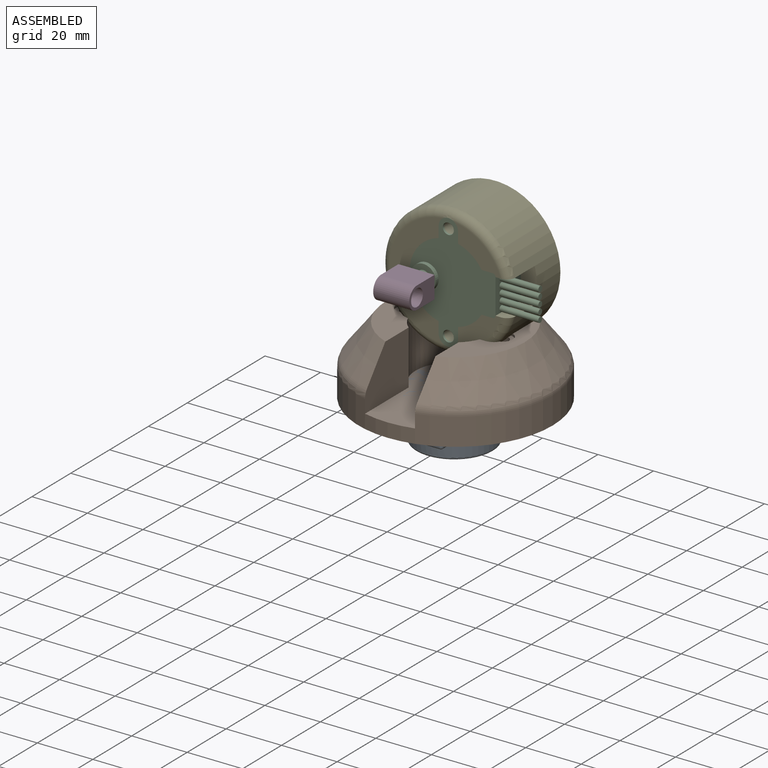
[diagram: assembled view]
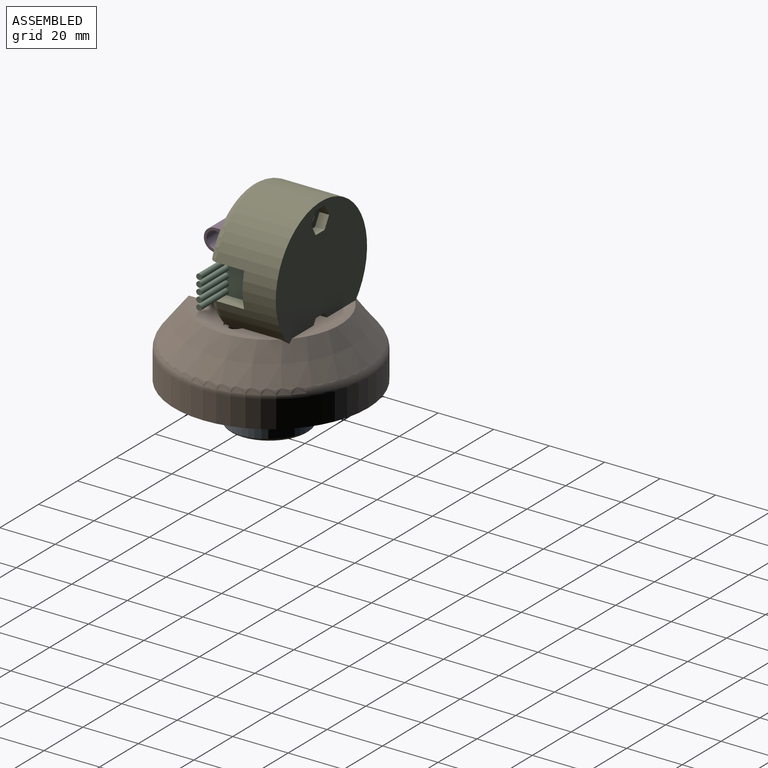
[diagram: assembled view, second angle]
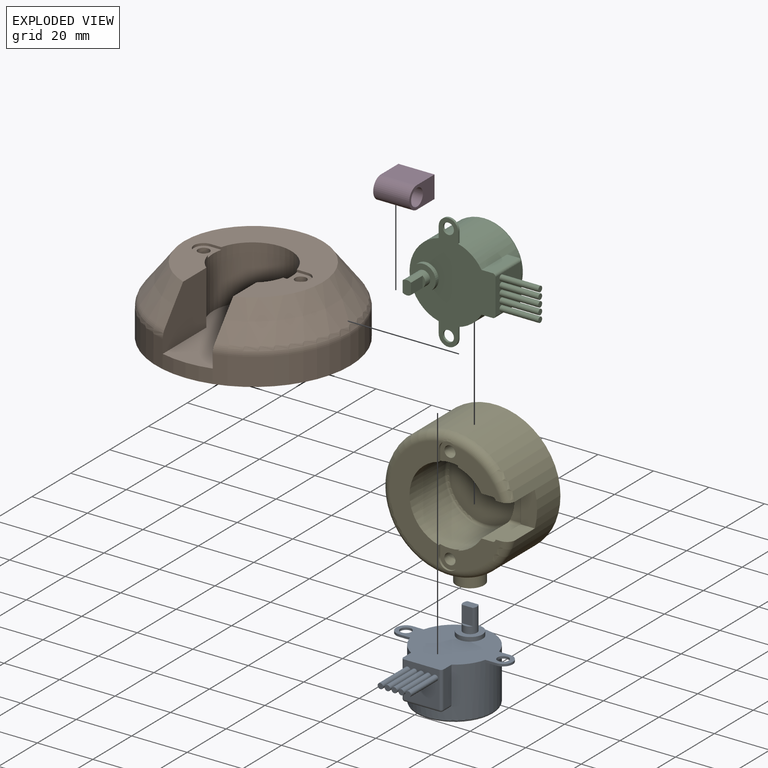
[diagram: exploded view]
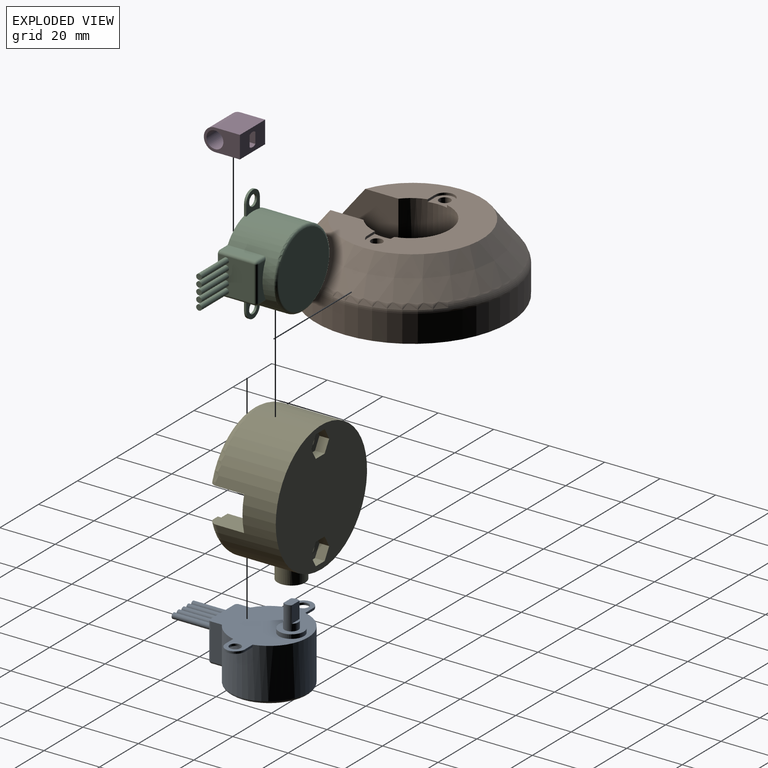
[diagram: exploded view, second angle]
ASSEMBLY  parts=5 mates=3
PART A: 43 faces, bbox 42x46.2x29 mm
  f0: sphere r=1mm, area 1.6mm2, adj f1,f5,f6
  f1: cylinder r=1mm len=13mm, axis (0,0,1), area 20.4mm2, adj f0,f7,f8,f9
  f2: sphere r=1mm, area 1.6mm2, adj f3,f4,f5
  f3: cylinder r=1mm len=13mm, axis (0,0,1), area 20.4mm2, adj f2,f7,f8,f28
  f4: cylinder r=1mm len=4.05mm, axis (0,-1,0), area 5.9mm2, adj f2,f11,f28,f29
  f5: cylinder r=1mm len=12.6mm, axis (-1,0,0), area 19.8mm2, adj f0,f2,f7,f29
  f6: cylinder r=1mm len=4.05mm, axis (0,1,0), area 5.9mm2, adj f0,f9,f11,f29
  f7: plane 13x12.6mm, normal (0,-1,0), area 148.1mm2, adj f1,f3,f5,f8,f18,f20,f22,f24
  f8: plane 42x31mm, normal (0,0,-1), area 669.6mm2, adj f1,f3,f7,f9,f11,f28,f30,f31
  f9: plane 13x4.05mm, normal (-1,0,0), area 52.7mm2, adj f1,f6,f8,f11
  f10: torus R=13mm, axis (0,0,-1), area 134.6mm2, adj f11,f12
  f11: cylinder r=14mm len=28mm, axis (0,0,1), area 1358.2mm2, adj f4,f6,f8,f9,f10,f28,f29,f32
  f12: plane 26x26mm, normal (0,0,1), area 530.9mm2, adj f10
  f13: plane 6x4mm, normal (0,-1,0), area 24mm2, adj f14,f17,f40
  f14: plane 4x1mm, normal (0,0,-1), area 2.8mm2, adj f13,f40
  f15: plane 6x4mm, normal (0,1,0), area 24mm2, adj f16,f17,f40
  f16: plane 4x1mm, normal (0,0,-1), area 2.8mm2, adj f15,f40
  f17: plane 5x3mm, normal (0,0,-1), area 14mm2, adj f13,f15,f40
  f18: cylinder r=1mm len=14mm, axis (0,-1,0), area 88mm2, adj f7,f19
  f19: plane 2x2mm, normal (0,-1,0), area 3.1mm2, adj f18
  f20: cylinder r=1mm len=14mm, axis (0,-1,0), area 88mm2, adj f7,f21
  f21: plane 2x2mm, normal (0,-1,0), area 3.1mm2, adj f20
  f22: cylinder r=1mm len=14mm, axis (0,-1,0), area 88mm2, adj f7,f23
  f23: plane 2x2mm, normal (0,-1,0), area 3.1mm2, adj f22
  f24: cylinder r=1mm len=14mm, axis (0,-1,0), area 88mm2, adj f7,f25
  f25: plane 2x2mm, normal (0,-1,0), area 3.1mm2, adj f24
  f26: cylinder r=1mm len=14mm, axis (0,-1,0), area 88mm2, adj f7,f27
  f27: plane 2x2mm, normal (0,-1,0), area 3.1mm2, adj f26
  f28: plane 13x4.05mm, normal (1,0,0), area 52.7mm2, adj f3,f4,f8,f11
  f29: plane 12.6x3.5mm, normal (0,0,1), area 31.3mm2, adj f4,f5,f6,f11
  f30: cylinder r=2mm len=4mm, axis (0,0,-1), area 10.1mm2, adj f8,f34
  f31: cylinder r=2mm len=4mm, axis (0,0,-1), area 10.1mm2, adj f8,f33
  f32: plane 3.94x0.8mm, normal (0,-1,0), area 3.2mm2, adj f8,f11,f33,f37
  f33: plane 7.44x7mm, normal (0,0,1), area 32.2mm2, adj f11,f31,f32,f35,f37
  f34: plane 7.44x7mm, normal (0,0,1), area 32.2mm2, adj f11,f30,f36,f38,f39
  f35: plane 3.94x0.8mm, normal (0,1,0), area 3.2mm2, adj f8,f11,f33,f37
  f36: plane 3.94x0.8mm, normal (0,1,0), area 3.2mm2, adj f8,f11,f34,f39
  f37: cylinder r=3.5mm len=7mm, axis (0,0,1), area 8.8mm2, adj f8,f32,f33,f35
  f38: plane 3.94x0.8mm, normal (0,-1,0), area 3.2mm2, adj f8,f11,f34,f39
  f39: cylinder r=3.5mm len=7mm, axis (0,0,1), area 8.8mm2, adj f8,f34,f36,f38
  f40: cylinder r=2.5mm len=8.5mm, axis (0,0,-1), area 77.9mm2, adj f13,f14,f15,f16,f17,f42
  f41: cylinder r=4.5mm len=9mm, axis (0,0,-1), area 42.4mm2, adj f8,f42
  f42: plane 9x9mm, normal (0,0,-1), area 44mm2, adj f40,f41
PART B: 33 faces, bbox 76.2x75x25 mm
  f0: cylinder r=35mm len=70mm, axis (0,0,-1), area 2067.6mm2, adj f2,f4,f14,f15,f32
  f1: cone r=35mm half-angle=37.6deg, axis (0,0,1), area 2449.5mm2, adj f3,f14,f15,f32
  f2: plane 70x70mm, normal (0,0,1), area 3738.5mm2, adj f0,f16,f17,f18,f19,f20,f21,f23
  f3: plane 50x48.34mm, normal (0,0,-1), area 1059.8mm2, adj f1,f5,f6,f7,f9,f10,f11,f12
  f4: plane 48.44x28.1mm, normal (0,0,-1), area 997.7mm2, adj f0,f9,f14,f15
  f5: plane 3.89x0.85mm, normal (0,-1,0), area 3.3mm2, adj f3,f6,f8,f9
  f6: cylinder r=3.5mm len=7mm, axis (0,0,1), area 9.3mm2, adj f3,f5,f7,f8
  f7: plane 3.89x0.85mm, normal (0,1,0), area 3.3mm2, adj f3,f6,f8,f9
  f8: plane 7.39x7mm, normal (0,0,-1), area 31.2mm2, adj f5,f6,f7,f9,f30
  f9: cylinder r=14.05mm len=28.1mm, axis (0,0,1), area 1328.5mm2, adj f3,f4,f5,f7,f8,f11,f12,f13
  f10: cylinder r=3.5mm len=7mm, axis (0,0,1), area 9.3mm2, adj f3,f11,f12,f13
  f11: plane 3.89x0.85mm, normal (0,-1,0), area 3.3mm2, adj f3,f9,f10,f13
  f12: plane 3.89x0.85mm, normal (0,1,0), area 3.3mm2, adj f3,f9,f10,f13
  f13: plane 7.39x7mm, normal (0,0,-1), area 31.2mm2, adj f9,f10,f11,f12,f31
  f14: plane 22.88x19.97mm, normal (1,0,0), area 368.8mm2, adj f0,f1,f3,f4,f9,f32
  f15: plane 22.89x19.96mm, normal (-1,0,0), area 369.2mm2, adj f0,f1,f3,f4,f9,f32
  f16: plane 3.98x3.5mm, normal (-0.5,-0.87,0), area 16.1mm2, adj f2,f17,f21,f22
  f17: plane 3.98x3.5mm, normal (0.5,-0.87,0), area 16.1mm2, adj f2,f16,f18,f22
  f18: plane 4.6x3.5mm, normal (1,0,0), area 16.1mm2, adj f2,f17,f19,f22
  f19: plane 3.98x3.5mm, normal (0.5,0.87,0), area 16.1mm2, adj f2,f18,f20,f22
  f20: plane 3.98x3.5mm, normal (-0.5,0.87,0), area 16.1mm2, adj f2,f19,f21,f22
  f21: plane 4.6x3.5mm, normal (-1,0,0), area 16.1mm2, adj f2,f16,f20,f22
  f22: plane 9.2x7.97mm, normal (0,0,1), area 41.8mm2, adj f16,f17,f18,f19,f20,f21,f31
  f23: plane 3.98x3.5mm, normal (-0.5,-0.87,0), area 16.1mm2, adj f2,f24,f28,f29
  f24: plane 3.98x3.5mm, normal (0.5,-0.87,0), area 16.1mm2, adj f2,f23,f25,f29
  f25: plane 4.6x3.5mm, normal (1,0,0), area 16.1mm2, adj f2,f24,f26,f29
  f26: plane 3.98x3.5mm, normal (0.5,0.87,0), area 16.1mm2, adj f2,f25,f27,f29
  f27: plane 3.98x3.5mm, normal (-0.5,0.87,0), area 16.1mm2, adj f2,f26,f28,f29
  f28: plane 4.6x3.5mm, normal (-1,0,0), area 16.1mm2, adj f2,f23,f27,f29
  f29: plane 9.2x7.97mm, normal (0,0,1), area 41.8mm2, adj f23,f24,f25,f26,f27,f28,f30
  f30: cylinder r=2.05mm len=20.15mm, axis (0,0,-1), area 259.5mm2, adj f8,f29
  f31: cylinder r=2.05mm len=20.15mm, axis (0,0,-1), area 259.5mm2, adj f13,f22
  f32: torus R=30mm, axis (0,0,-1), area 653.7mm2, adj f0,f1,f14,f15
PART C: same geometry as A
PART D: 14 faces, bbox 8x13x13 mm
  f0: plane 13x8mm, normal (0,1,0), area 90mm2, adj f2,f3,f5,f6,f9,f10,f11,f12
  f1: cylinder r=4mm len=13mm, axis (0,0,-1), area 163.4mm2, adj f2,f3,f5,f6
  f2: plane 13x9mm, normal (1,0,0), area 117mm2, adj f0,f1,f5,f6
  f3: plane 13x9mm, normal (-1,0,0), area 117mm2, adj f0,f1,f5,f6
  f4: cylinder r=3.05mm len=12mm, axis (0,0,-1), area 230mm2, adj f5,f8
  f5: plane 13x8mm, normal (0,0,1), area 67.9mm2, adj f0,f1,f2,f3,f4
  f6: plane 13x8mm, normal (0,0,-1), area 81.2mm2, adj f0,f1,f2,f3,f7
  f7: cylinder r=2.25mm len=4.5mm, axis (0,0,-1), area 14.1mm2, adj f6,f8
  f8: plane 6.1x6.1mm, normal (0,0,1), area 13.3mm2, adj f4,f7
  f9: plane 5x4mm, normal (0,0,-1), area 20mm2, adj f0,f10,f12,f13
  f10: cylinder r=2.5mm len=5mm, axis (0,1,0), area 16.1mm2, adj f0,f9,f11,f13
  f11: plane 5x4mm, normal (0,0,1), area 20mm2, adj f0,f10,f12,f13
  f12: cylinder r=2.5mm len=5mm, axis (0,1,0), area 16.1mm2, adj f0,f9,f11,f13
  f13: plane 5x3mm, normal (0,1,0), area 14mm2, adj f9,f10,f11,f12
PART E: 53 faces, bbox 55.8x50.4x25.4 mm
  f0: cylinder r=2.5mm len=6.6mm, axis (-1,0,0), area 21mm2, adj f1,f3,f5,f52
  f1: plane 6.47x4mm, normal (0,1,0), area 25.9mm2, adj f0,f2,f5,f52
  f2: cylinder r=2.5mm len=6.6mm, axis (-1,0,0), area 21mm2, adj f1,f3,f5,f52
  f3: plane 6.6x4mm, normal (0,-1,0), area 26.4mm2, adj f0,f2,f5,f52
  f4: cylinder r=5mm len=10mm, axis (-1,0,0), area 212.1mm2, adj f5,f51
  f5: plane 10x10mm, normal (1,0,0), area 64.5mm2, adj f0,f1,f2,f3,f4
  f6: plane 13.44x5.45mm, normal (1,0,0), area 63.2mm2, adj f8,f23,f43,f50,f51
  f7: plane 13.43x5.47mm, normal (-1,0,0), area 63.5mm2, adj f8,f23,f41,f45,f51
  f8: plane 12.6x5.89mm, normal (0,0,-1), area 70.6mm2, adj f6,f7,f39,f51
  f9: plane 9.2x7.97mm, normal (0,0,1), area 42.4mm2, adj f10,f11,f12,f13,f14,f15,f48
  f10: plane 4.6x3.5mm, normal (-1,0,0), area 16.1mm2, adj f9,f11,f15,f49
  f11: plane 3.98x3.5mm, normal (-0.5,0.87,0), area 16.1mm2, adj f9,f10,f12,f49
  f12: plane 3.98x3.5mm, normal (0.5,0.87,0), area 16.1mm2, adj f9,f11,f13,f49
  f13: plane 4.6x3.5mm, normal (1,0,0), area 16.1mm2, adj f9,f12,f14,f49
  f14: plane 3.98x3.5mm, normal (0.5,-0.87,0), area 16.1mm2, adj f9,f13,f15,f49
  f15: plane 3.98x3.5mm, normal (-0.5,-0.87,0), area 16.1mm2, adj f9,f10,f14,f49
  f16: plane 9.2x7.97mm, normal (0,0,1), area 42.4mm2, adj f17,f18,f19,f20,f21,f22,f47
  f17: plane 4.6x3.5mm, normal (-1,0,0), area 16.1mm2, adj f16,f18,f22,f49
  f18: plane 3.98x3.5mm, normal (-0.5,0.87,0), area 16.1mm2, adj f16,f17,f19,f49
  f19: plane 3.98x3.5mm, normal (0.5,0.87,0), area 16.1mm2, adj f16,f18,f20,f49
  f20: plane 4.6x3.5mm, normal (1,0,0), area 16.1mm2, adj f16,f19,f21,f49
  f21: plane 3.98x3.5mm, normal (0.5,-0.87,0), area 16.1mm2, adj f16,f20,f22,f49
  f22: plane 3.98x3.5mm, normal (-0.5,-0.87,0), area 16.1mm2, adj f16,f17,f21,f49
  f23: torus R=20.5mm, axis (0,0,1), area 599.2mm2, adj f6,f7,f24,f26,f45,f46,f50,f51
  f24: cylinder r=3.5mm len=7mm, axis (0,0,1), area 8.8mm2, adj f23,f25,f27,f29,f46,f50
  f25: plane 3.94x0.8mm, normal (0,1,0), area 3.2mm2, adj f24,f29,f35,f50
  f26: cylinder r=3.5mm len=7mm, axis (0,0,1), area 8.8mm2, adj f23,f28,f30,f31,f45,f46
  f27: plane 3.94x0.8mm, normal (0,-1,0), area 3.2mm2, adj f24,f29,f35,f46
  f28: plane 3.94x0.8mm, normal (0,-1,0), area 3.2mm2, adj f26,f30,f35,f46
  f29: plane 7.44x7mm, normal (0,0,-1), area 32.2mm2, adj f24,f25,f27,f35,f48
  f30: plane 7.44x7mm, normal (0,0,-1), area 32.2mm2, adj f26,f28,f31,f35,f47
  f31: plane 3.94x0.8mm, normal (0,1,0), area 3.2mm2, adj f26,f30,f35,f45
  f32: plane 12.6x3.5mm, normal (0,0,-1), area 31.3mm2, adj f35,f38,f39,f40
  f33: plane 13x4.05mm, normal (-1,0,0), area 52.7mm2, adj f35,f40,f41,f45
  f34: plane 26x26mm, normal (0,0,-1), area 530.9mm2, adj f36
  f35: cylinder r=14mm len=28mm, axis (0,0,1), area 1358.2mm2, adj f25,f27,f28,f29,f30,f31,f32,f33
  f36: torus R=13mm, axis (0,0,-1), area 134.6mm2, adj f34,f35
  f37: plane 13x4.05mm, normal (1,0,0), area 52.7mm2, adj f35,f38,f43,f50
  f38: cylinder r=1mm len=4.05mm, axis (0,1,0), area 5.9mm2, adj f32,f35,f37,f44
  f39: cylinder r=1mm len=12.6mm, axis (-1,0,0), area 19.8mm2, adj f8,f32,f42,f44
  f40: cylinder r=1mm len=4.05mm, axis (0,-1,0), area 5.9mm2, adj f32,f33,f35,f42
  f41: cylinder r=1mm len=13mm, axis (0,0,1), area 20.4mm2, adj f7,f33,f42,f45
  f42: sphere r=1mm, area 1.6mm2, adj f39,f40,f41
  f43: cylinder r=1mm len=13mm, axis (0,0,1), area 20.4mm2, adj f6,f37,f44,f50
  f44: sphere r=1mm, area 1.6mm2, adj f38,f39,f43
  f45: plane 16.9x14.07mm, normal (0,0,-1), area 99.9mm2, adj f7,f23,f26,f31,f33,f35,f41
  f46: plane 40.92x19.32mm, normal (0,0,-1), area 333.9mm2, adj f23,f24,f26,f27,f28,f35
  f47: cylinder r=2mm len=20.7mm, axis (0,0,-1), area 260.1mm2, adj f16,f30
  f48: cylinder r=2mm len=20.7mm, axis (0,0,-1), area 260.1mm2, adj f9,f29
  f49: plane 47x47mm, normal (0,0,1), area 1625mm2, adj f10,f11,f12,f13,f14,f15,f17,f18
  f50: plane 16.75x13.98mm, normal (0,0,-1), area 98.6mm2, adj f6,f23,f24,f25,f35,f37,f43
  f51: cylinder r=23.5mm len=47mm, axis (0,0,-1), area 3042.2mm2, adj f4,f6,f7,f8,f23,f49
  f52: cylinder r=23.5mm len=5mm, axis (0,0,-1), area 14.1mm2, adj f0,f1,f2,f3
PLACE A rot(axis=(0,-1,0),180deg) t=(47.2,-9.79,27.54)mm
PLACE B rot(axis=(0,-1,0),180deg) t=(47.2,-9.79,27.54)mm
PLACE C rot(axis=(-0.58,0.58,0.58),120deg) t=(48.83,-15.27,62.54)mm
PLACE D rot(axis=(0,1,0),90deg) t=(34.33,-29.27,62.54)mm
PLACE E rot(axis=(-0.58,0.58,0.58),120deg) t=(48.83,-15.27,62.54)mm
MATE revolute D.f12 <-> C.f40  axis (0,1,0) through (40.83,-25.27,62.54)mm
MATE revolute E.f0 <-> A.f40  axis (0,0,-1) through (47.2,-1.79,32.54)mm
MATE fastened C.f10 <-> E.f35  axis (0,1,0) through (48.83,3.73,62.54)mm
